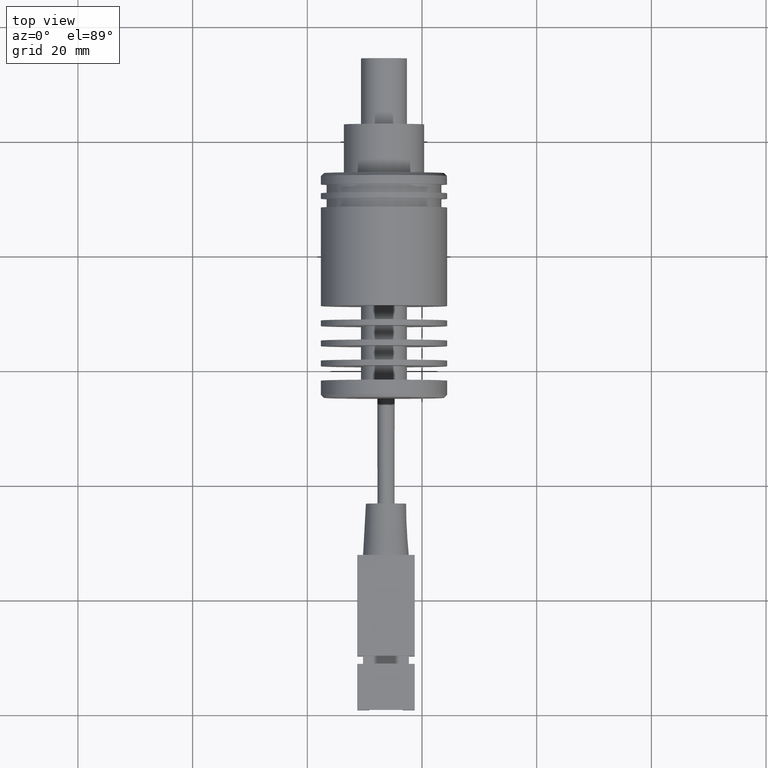
[diagram: clean part render]
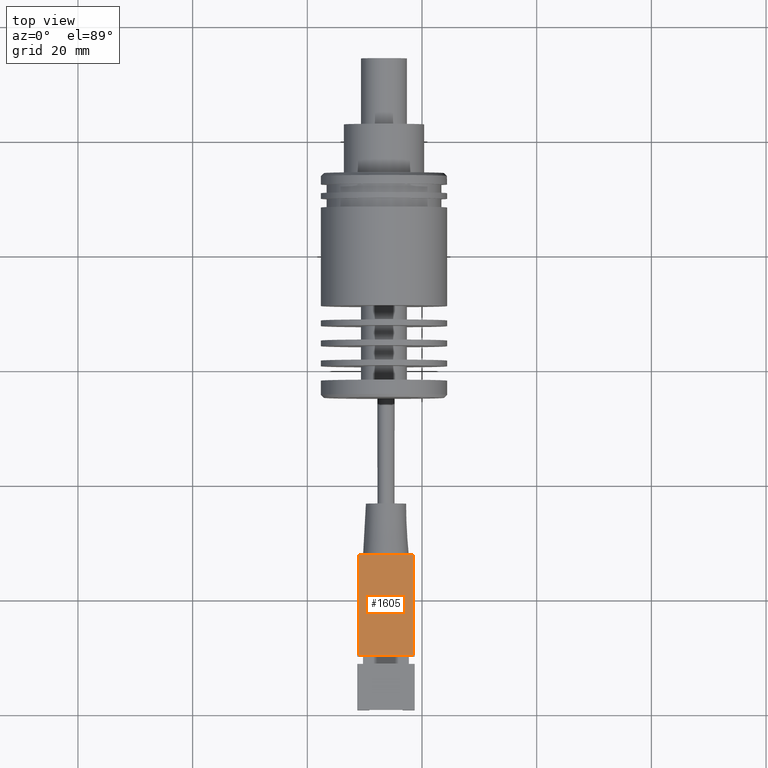
[diagram: same view with one face highlighted and labeled with its STEP entity id]
A machine part, top view. The second image highlights one B-rep face of the part: STEP entity #1605.
In plain terms, the highlighted planar face has unit normal (0, 0, -1).
Its self-contained STEP definition (entity closure, byte-faithful):
#43 = EDGE_CURVE ( 'NONE', #2214, #232, #1409, .T. ) ;
#128 = LINE ( 'NONE', #2526, #1657 ) ;
#232 = VERTEX_POINT ( 'NONE', #1330 ) ;
#347 = CARTESIAN_POINT ( 'NONE',  ( -21.48038219277355054, -79.15289768701185835, 24.20000000000808882 ) ) ;
#446 = DIRECTION ( 'NONE',  ( 1.000000000000000000, 6.245004513516504307E-17, 6.162975822039155825E-32 ) ) ;
#604 = CARTESIAN_POINT ( 'NONE',  ( -21.48038219277355054, -69.75289768701186688, 24.20000000000808882 ) ) ;
#623 = LINE ( 'NONE', #1970, #1118 ) ;
#628 = EDGE_CURVE ( 'NONE', #1736, #796, #669, .T. ) ;
#669 = LINE ( 'NONE', #899, #730 ) ;
#699 = ORIENTED_EDGE ( 'NONE', *, *, #43, .F. ) ;
#721 = CARTESIAN_POINT ( 'NONE',  ( -21.48038219277355054, -52.15289768701185835, 24.20000000000808882 ) ) ;
#730 = VECTOR ( 'NONE', #2223, 1000.000000000000000 ) ;
#796 = VERTEX_POINT ( 'NONE', #1166 ) ;
#899 = CARTESIAN_POINT ( 'NONE',  ( -21.48038219277355054, -69.75289768701186688, 24.20000000000808882 ) ) ;
#940 = ORIENTED_EDGE ( 'NONE', *, *, #2282, .F. ) ;
#969 = VECTOR ( 'NONE', #1833, 1000.000000000000000 ) ;
#1027 = CARTESIAN_POINT ( 'NONE',  ( -21.48038219277355054, -79.15289768701185835, 24.20000000000808882 ) ) ;
#1118 = VECTOR ( 'NONE', #446, 1000.000000000000000 ) ;
#1166 = CARTESIAN_POINT ( 'NONE',  ( -31.08038219277355196, -69.75289768701186688, 24.20000000000808882 ) ) ;
#1202 = DIRECTION ( 'NONE',  ( -6.245004513516504307E-17, 1.000000000000000000, 6.123233995736774664E-17 ) ) ;
#1330 = CARTESIAN_POINT ( 'NONE',  ( -26.28065555087320604, -52.15289768697343931, 24.19999999534773494 ) ) ;
#1389 = VECTOR ( 'NONE', #2006, 1000.000000000000000 ) ;
#1394 = ORIENTED_EDGE ( 'NONE', *, *, #1685, .F. ) ;
#1409 = LINE ( 'NONE', #721, #1389 ) ;
#1419 = FACE_OUTER_BOUND ( 'NONE', #2622, .T. ) ;
#1556 = ORIENTED_EDGE ( 'NONE', *, *, #2556, .F. ) ;
#1605 = ADVANCED_FACE ( 'NONE', ( #1419 ), #2743, .F. ) ;
#1657 = VECTOR ( 'NONE', #2077, 1000.000000000000000 ) ;
#1685 = EDGE_CURVE ( 'NONE', #796, #2214, #128, .T. ) ;
#1736 = VERTEX_POINT ( 'NONE', #604 ) ;
#1833 = DIRECTION ( 'NONE',  ( 6.245004513516504307E-17, -1.000000000000000000, -6.123233995736774664E-17 ) ) ;
#1834 = VERTEX_POINT ( 'NONE', #2620 ) ;
#1876 = ORIENTED_EDGE ( 'NONE', *, *, #628, .F. ) ;
#1970 = CARTESIAN_POINT ( 'NONE',  ( -21.48038219277355054, -52.15289768701185835, 24.20000000000808882 ) ) ;
#2006 = DIRECTION ( 'NONE',  ( 1.000000000000000000, 6.245004513516504307E-17, 6.162975822039155825E-32 ) ) ;
#2077 = DIRECTION ( 'NONE',  ( -6.245004513516504307E-17, 1.000000000000000000, 6.123233995736774664E-17 ) ) ;
#2083 = LINE ( 'NONE', #347, #969 ) ;
#2214 = VERTEX_POINT ( 'NONE', #2347 ) ;
#2223 = DIRECTION ( 'NONE',  ( -1.000000000000000000, -6.245004513516504307E-17, -6.162975822039155825E-32 ) ) ;
#2282 = EDGE_CURVE ( 'NONE', #232, #1834, #623, .T. ) ;
#2347 = CARTESIAN_POINT ( 'NONE',  ( -31.08038219277355196, -52.15289768701185835, 24.20000000000808882 ) ) ;
#2526 = CARTESIAN_POINT ( 'NONE',  ( -31.08038219277355196, -79.15289768701185835, 24.20000000000808882 ) ) ;
#2539 = DIRECTION ( 'NONE',  ( 5.780579582632218254E-32, 6.123233995736774664E-17, -1.000000000000000000 ) ) ;
#2556 = EDGE_CURVE ( 'NONE', #1834, #1736, #2083, .T. ) ;
#2620 = CARTESIAN_POINT ( 'NONE',  ( -21.48038219277355054, -52.15289768701185835, 24.20000000000808882 ) ) ;
#2622 = EDGE_LOOP ( 'NONE', ( #1876, #1556, #940, #699, #1394 ) ) ;
#2658 = AXIS2_PLACEMENT_3D ( 'NONE', #1027, #2539, #1202 ) ;
#2743 = PLANE ( 'NONE',  #2658 ) ;